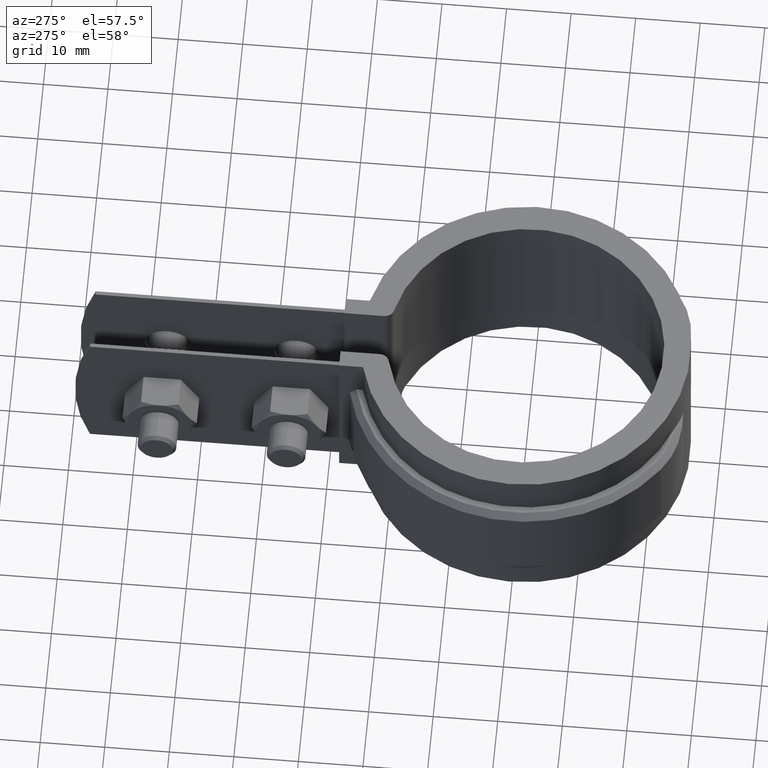
[diagram: clean part render]
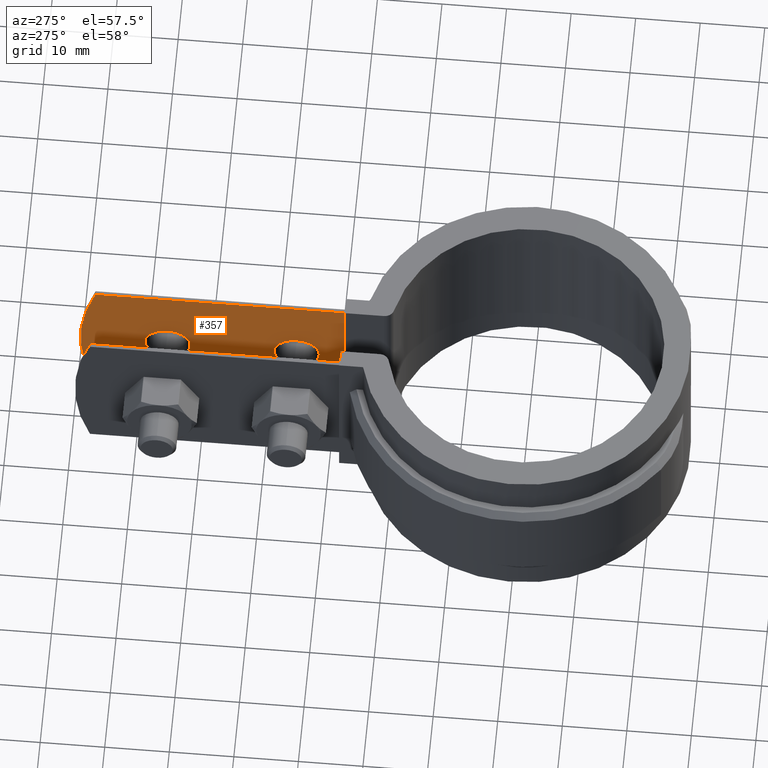
[diagram: same view with one face highlighted and labeled with its STEP entity id]
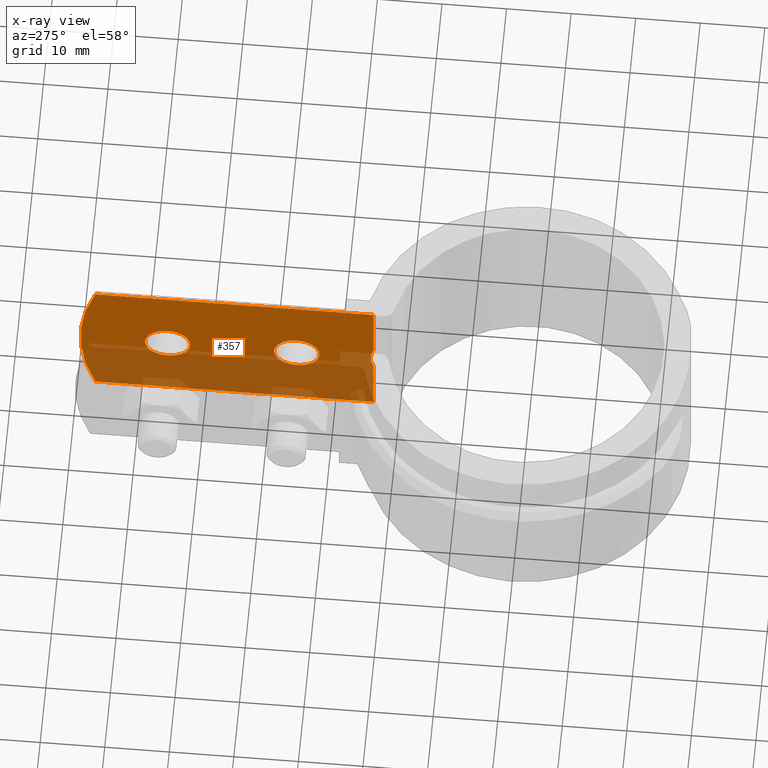
[diagram: x-ray of the same camera — body ghosted, the highlighted face saturated]
A machine part, auxiliary view. The second image highlights one B-rep face of the part: STEP entity #357.
The next image is the same camera in x-ray: the body ghosted, the highlighted face saturated — about 46% of this face is hidden behind the body in this view.
In plain terms, the highlighted planar face has unit normal (-1, 0, 0).
Its self-contained STEP definition (entity closure, byte-faithful):
#357 = ADVANCED_FACE( '', ( #615, #616, #617 ), #618, .T. );
#615 = FACE_BOUND( '', #1269, .T. );
#616 = FACE_BOUND( '', #1270, .T. );
#617 = FACE_OUTER_BOUND( '', #1271, .T. );
#618 = PLANE( '', #1272 );
#1269 = EDGE_LOOP( '', ( #2742 ) );
#1270 = EDGE_LOOP( '', ( #2743 ) );
#1271 = EDGE_LOOP( '', ( #2744, #2745, #2746, #2747, #2748, #2749 ) );
#1272 = AXIS2_PLACEMENT_3D( '', #2750, #2751, #2752 );
#2742 = ORIENTED_EDGE( '', *, *, #5012, .T. );
#2743 = ORIENTED_EDGE( '', *, *, #5013, .T. );
#2744 = ORIENTED_EDGE( '', *, *, #4993, .F. );
#2745 = ORIENTED_EDGE( '', *, *, #4923, .T. );
#2746 = ORIENTED_EDGE( '', *, *, #4970, .F. );
#2747 = ORIENTED_EDGE( '', *, *, #4890, .T. );
#2748 = ORIENTED_EDGE( '', *, *, #5011, .T. );
#2749 = ORIENTED_EDGE( '', *, *, #5007, .F. );
#2750 = CARTESIAN_POINT( '', ( 4.50000000000000, 23.9848389613105, 0.000000000000000 ) );
#2751 = DIRECTION( '', ( -1.00000000000000, 6.12303176911189E-017, 0.000000000000000 ) );
#2752 = DIRECTION( '', ( 6.12303176911189E-017, 1.00000000000000, 0.000000000000000 ) );
#4890 = EDGE_CURVE( '', #5474, #5472, #5475, .T. );
#4923 = EDGE_CURVE( '', #5534, #5532, #5535, .T. );
#4970 = EDGE_CURVE( '', #5474, #5532, #5616, .T. );
#4993 = EDGE_CURVE( '', #5534, #5645, #5646, .T. );
#5007 = EDGE_CURVE( '', #5645, #5661, #5667, .T. );
#5011 = EDGE_CURVE( '', #5472, #5661, #5673, .T. );
#5012 = EDGE_CURVE( '', #5674, #5674, #5675, .F. );
#5013 = EDGE_CURVE( '', #5676, #5676, #5677, .F. );
#5472 = VERTEX_POINT( '', #6556 );
#5474 = VERTEX_POINT( '', #6559 );
#5475 = LINE( '', #6560, #6561 );
#5532 = VERTEX_POINT( '', #6968 );
#5534 = VERTEX_POINT( '', #6985 );
#5535 = B_SPLINE_CURVE_WITH_KNOTS( '', 3, ( #6986, #6987, #6988, #6989, #6990 ), .UNSPECIFIED., .F., .F., ( 4, 1, 4 ), ( 0.000000000000000, 0.00233522866523848, 0.00467045733043595 ), .UNSPECIFIED. );
#5616 = LINE( '', #7356, #7357 );
#5645 = VERTEX_POINT( '', #7429 );
#5646 = LINE( '', #7430, #7431 );
#5661 = VERTEX_POINT( '', #7449 );
#5667 = LINE( '', #7458, #7459 );
#5673 = CIRCLE( '', #7465, 35.0000000000000 );
#5674 = VERTEX_POINT( '', #7466 );
#5675 = CIRCLE( '', #7467, 3.50000000000000 );
#5676 = VERTEX_POINT( '', #7468 );
#5677 = CIRCLE( '', #7469, 3.50000000000000 );
#6556 = CARTESIAN_POINT( '', ( 4.50000000000001, 67.0942530965278, 0.000000000000000 ) );
#6559 = CARTESIAN_POINT( '', ( 4.50000000000000, 23.9848389613105, 0.000000000000000 ) );
#6560 = CARTESIAN_POINT( '', ( 4.50000000000000, 23.9848389613105, 0.000000000000000 ) );
#6561 = VECTOR( '', #10143, 1000.00000000000 );
#6968 = CARTESIAN_POINT( '', ( 4.50000000000000, 23.9848389613184, -10.2108896500494 ) );
#6985 = CARTESIAN_POINT( '', ( 4.50000000000000, 23.9848389613105, -14.7891103499697 ) );
#6986 = CARTESIAN_POINT( '', ( 4.50000000000000, 23.9848389613105, -14.7891103499697 ) );
#6987 = CARTESIAN_POINT( '', ( 4.50000000000000, 24.2827510878048, -14.0652305012096 ) );
#6988 = CARTESIAN_POINT( '', ( 4.50000000000000, 24.5955672138689, -12.5000000000138 ) );
#6989 = CARTESIAN_POINT( '', ( 4.50000000000000, 24.2827510878103, -10.9347694988179 ) );
#6990 = CARTESIAN_POINT( '', ( 4.50000000000000, 23.9848389613262, -10.2108896500685 ) );
#7356 = CARTESIAN_POINT( '', ( 4.50000000000000, 23.9848389613105, 0.000000000000000 ) );
#7357 = VECTOR( '', #10205, 1000.00000000000 );
#7429 = CARTESIAN_POINT( '', ( 4.50000000000000, 23.9848389613105, -25.0000000000000 ) );
#7430 = CARTESIAN_POINT( '', ( 4.50000000000000, 23.9848389613105, 0.000000000000000 ) );
#7431 = VECTOR( '', #10229, 1000.00000000000 );
#7449 = CARTESIAN_POINT( '', ( 4.50000000000001, 67.0942530965278, -25.0000000000000 ) );
#7458 = CARTESIAN_POINT( '', ( 4.50000000000000, 23.9848389613105, -25.0000000000000 ) );
#7459 = VECTOR( '', #10257, 1000.00000000000 );
#7465 = AXIS2_PLACEMENT_3D( '', #10267, #10268, #10269 );
#7466 = CARTESIAN_POINT( '', ( 4.50000000000000, 32.4025110199728, -12.5000000000000 ) );
#7467 = AXIS2_PLACEMENT_3D( '', #10270, #10271, #10272 );
#7468 = CARTESIAN_POINT( '', ( 4.50000000000000, 52.4025110199727, -12.5000000000000 ) );
#7469 = AXIS2_PLACEMENT_3D( '', #10273, #10274, #10275 );
#10143 = DIRECTION( '', ( 6.12303176911189E-017, 1.00000000000000, 0.000000000000000 ) );
#10205 = DIRECTION( '', ( 0.000000000000000, 0.000000000000000, -1.00000000000000 ) );
#10229 = DIRECTION( '', ( 0.000000000000000, 0.000000000000000, -1.00000000000000 ) );
#10257 = DIRECTION( '', ( 6.12303176911189E-017, 1.00000000000000, 0.000000000000000 ) );
#10267 = CARTESIAN_POINT( '', ( 4.50000000000000, 34.4025110199728, -12.5000000000000 ) );
#10268 = DIRECTION( '', ( -1.00000000000000, 6.12303176911189E-017, 0.000000000000000 ) );
#10269 = DIRECTION( '', ( -6.12303176911189E-017, -1.00000000000000, 0.000000000000000 ) );
#10270 = CARTESIAN_POINT( '', ( 4.50000000000000, 35.9025110199727, -12.5000000000000 ) );
#10271 = DIRECTION( '', ( -1.00000000000000, 6.12303176911189E-017, 0.000000000000000 ) );
#10272 = DIRECTION( '', ( -6.12303176911189E-017, -1.00000000000000, 0.000000000000000 ) );
#10273 = CARTESIAN_POINT( '', ( 4.50000000000000, 55.9025110199727, -12.5000000000000 ) );
#10274 = DIRECTION( '', ( -1.00000000000000, 6.12303176911189E-017, 0.000000000000000 ) );
#10275 = DIRECTION( '', ( -6.12303176911189E-017, -1.00000000000000, 0.000000000000000 ) );